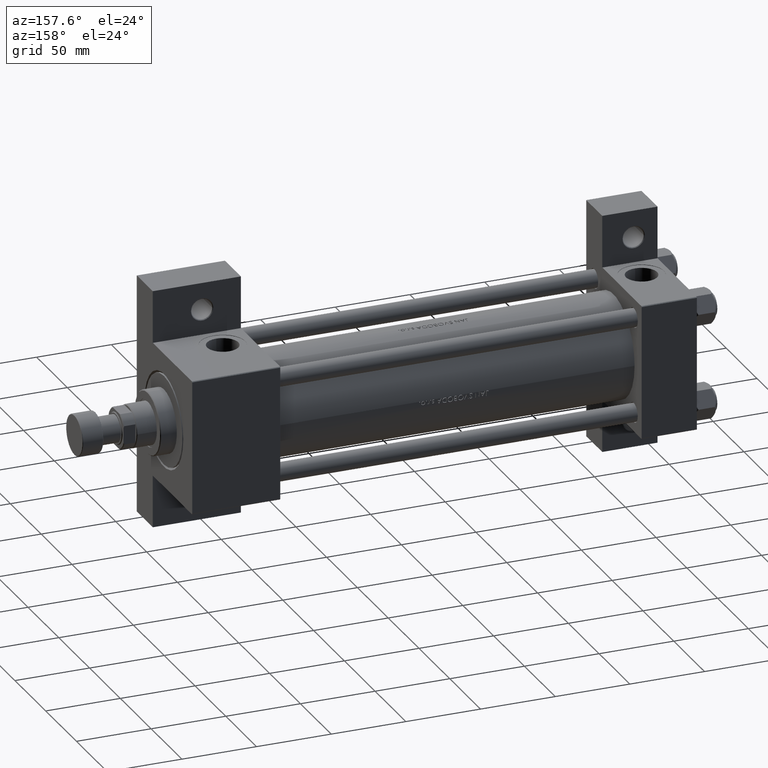
[diagram: clean part render]
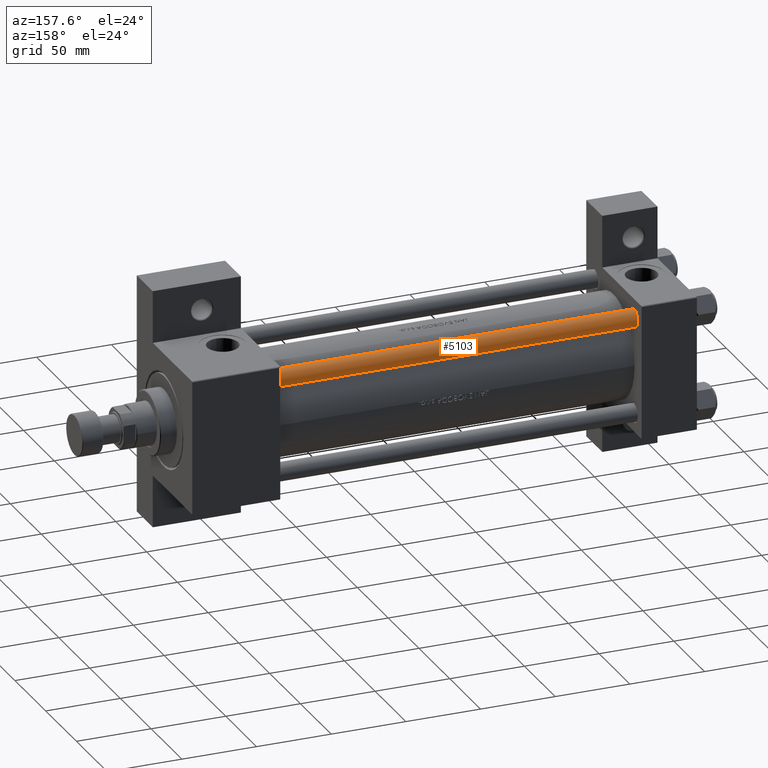
[diagram: same view with one face highlighted and labeled with its STEP entity id]
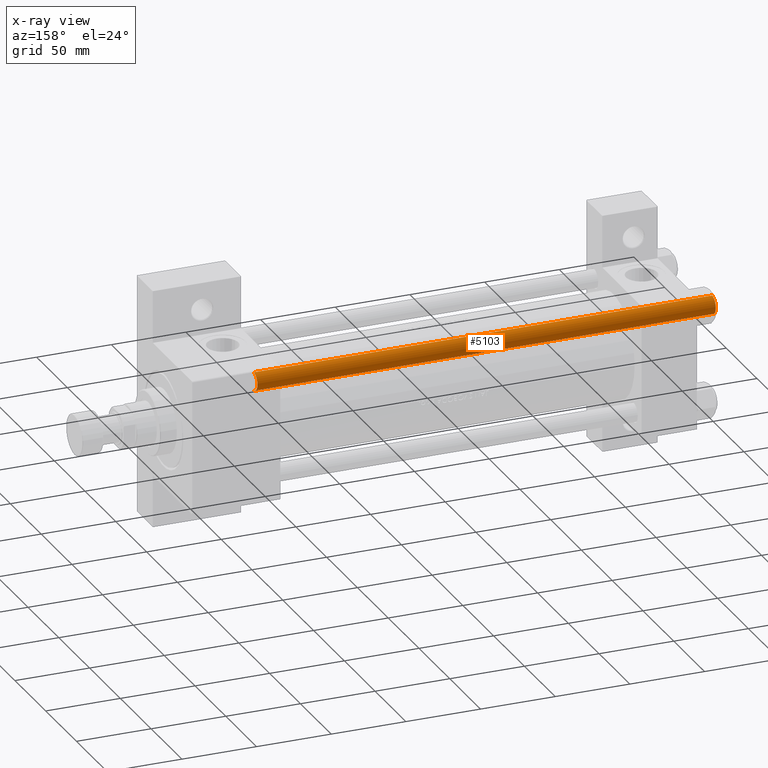
[diagram: x-ray of the same camera — body ghosted, the highlighted face saturated]
A machine part, auxiliary view. The second image highlights one B-rep face of the part: STEP entity #5103.
The next image is the same camera in x-ray: the body ghosted, the highlighted face saturated — about 0% of this face is hidden behind the body in this view.
In plain terms, the highlighted cylindrical surface (edge-blend (fillet) strip) has radius 6 mm, axis along (-1, -0, -0).
Its self-contained STEP definition (entity closure, byte-faithful):
#3900 = CARTESIAN_POINT ( 'NONE',  ( -6.000000000000000888, 0.000000000000000000, 0.5000000000000559552 ) ) ;
#4342 = EDGE_CURVE ( 'NONE', #40740, #6836, #25497, .T. ) ;
#5103 = ADVANCED_FACE ( 'NONE', ( #14464 ), #14704, .T. ) ;
#6209 = DIRECTION ( 'NONE',  ( 1.000000000000000000, 0.000000000000000000, 0.000000000000000000 ) ) ;
#6344 = DIRECTION ( 'NONE',  ( -0.000000000000000000, -0.000000000000000000, -1.000000000000000000 ) ) ;
#6836 = VERTEX_POINT ( 'NONE', #36838 ) ;
#6842 = AXIS2_PLACEMENT_3D ( 'NONE', #29036, #28293, #6209 ) ;
#8293 = EDGE_LOOP ( 'NONE', ( #10107, #34499, #29233, #37850 ) ) ;
#10107 = ORIENTED_EDGE ( 'NONE', *, *, #4342, .T. ) ;
#12809 = EDGE_CURVE ( 'NONE', #35629, #48302, #39391, .T. ) ;
#13146 = VECTOR ( 'NONE', #47853, 1000.000000000000000 ) ;
#14464 = FACE_OUTER_BOUND ( 'NONE', #8293, .T. ) ;
#14704 = CYLINDRICAL_SURFACE ( 'NONE', #36002, 6.000000000000000888 ) ;
#16227 = VECTOR ( 'NONE', #6344, 1000.000000000000000 ) ;
#19165 = AXIS2_PLACEMENT_3D ( 'NONE', #47044, #34359, #31327 ) ;
#21570 = LINE ( 'NONE', #29423, #16227 ) ;
#25497 = CIRCLE ( 'NONE', #6842, 6.000000000000000888 ) ;
#25550 = LINE ( 'NONE', #44296, #13146 ) ;
#26653 = EDGE_CURVE ( 'NONE', #40740, #48302, #21570, .T. ) ;
#27580 = CARTESIAN_POINT ( 'NONE',  ( 6.000000000000000888, 7.347880794884120722E-16, 0.5000000000000559552 ) ) ;
#28293 = DIRECTION ( 'NONE',  ( 0.000000000000000000, 0.000000000000000000, -1.000000000000000000 ) ) ;
#29036 = CARTESIAN_POINT ( 'NONE',  ( 0.000000000000000000, 0.000000000000000000, 307.4999999999999432 ) ) ;
#29233 = ORIENTED_EDGE ( 'NONE', *, *, #12809, .T. ) ;
#29418 = DIRECTION ( 'NONE',  ( -1.000000000000000000, 0.000000000000000000, 0.000000000000000000 ) ) ;
#29423 = CARTESIAN_POINT ( 'NONE',  ( -6.000000000000000888, 0.000000000000000000, 308.0000000000000000 ) ) ;
#30052 = EDGE_CURVE ( 'NONE', #6836, #35629, #25550, .T. ) ;
#31327 = DIRECTION ( 'NONE',  ( 1.000000000000000000, 0.000000000000000000, 0.000000000000000000 ) ) ;
#34359 = DIRECTION ( 'NONE',  ( -0.000000000000000000, -0.000000000000000000, 1.000000000000000000 ) ) ;
#34499 = ORIENTED_EDGE ( 'NONE', *, *, #30052, .T. ) ;
#35629 = VERTEX_POINT ( 'NONE', #27580 ) ;
#36002 = AXIS2_PLACEMENT_3D ( 'NONE', #45608, #44865, #29418 ) ;
#36838 = CARTESIAN_POINT ( 'NONE',  ( 6.000000000000000888, 7.347880794884120722E-16, 307.4999999999999432 ) ) ;
#37850 = ORIENTED_EDGE ( 'NONE', *, *, #26653, .F. ) ;
#39391 = CIRCLE ( 'NONE', #19165, 6.000000000000000888 ) ;
#40740 = VERTEX_POINT ( 'NONE', #48441 ) ;
#44296 = CARTESIAN_POINT ( 'NONE',  ( 6.000000000000000888, 7.347880794884120722E-16, 308.0000000000000000 ) ) ;
#44865 = DIRECTION ( 'NONE',  ( -0.000000000000000000, -0.000000000000000000, -1.000000000000000000 ) ) ;
#45608 = CARTESIAN_POINT ( 'NONE',  ( 0.000000000000000000, 0.000000000000000000, 308.0000000000000000 ) ) ;
#47044 = CARTESIAN_POINT ( 'NONE',  ( 0.000000000000000000, 0.000000000000000000, 0.5000000000000559552 ) ) ;
#47853 = DIRECTION ( 'NONE',  ( -0.000000000000000000, -0.000000000000000000, -1.000000000000000000 ) ) ;
#48302 = VERTEX_POINT ( 'NONE', #3900 ) ;
#48441 = CARTESIAN_POINT ( 'NONE',  ( -6.000000000000000888, 0.000000000000000000, 307.4999999999999432 ) ) ;